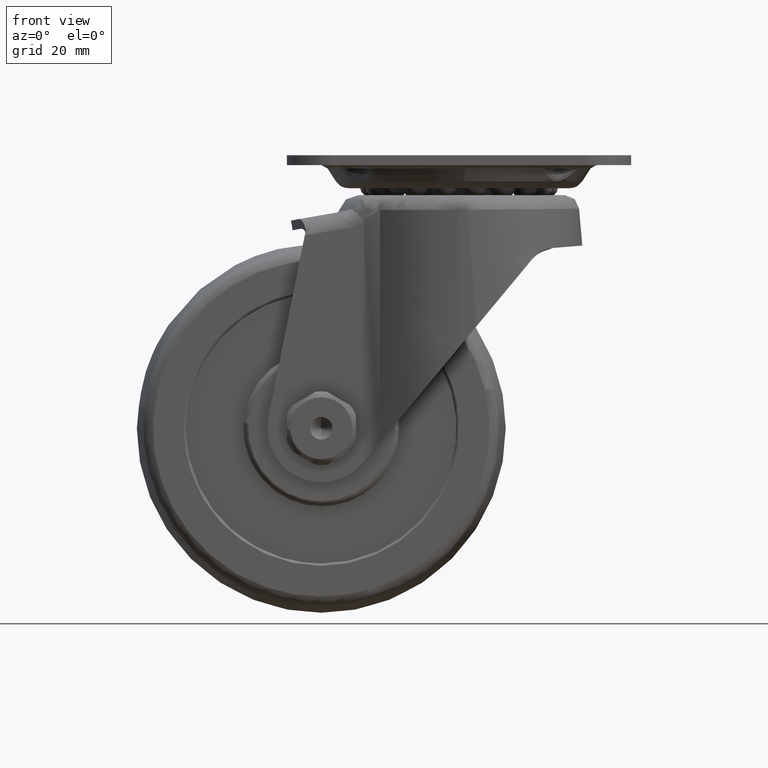
[diagram: clean part render]
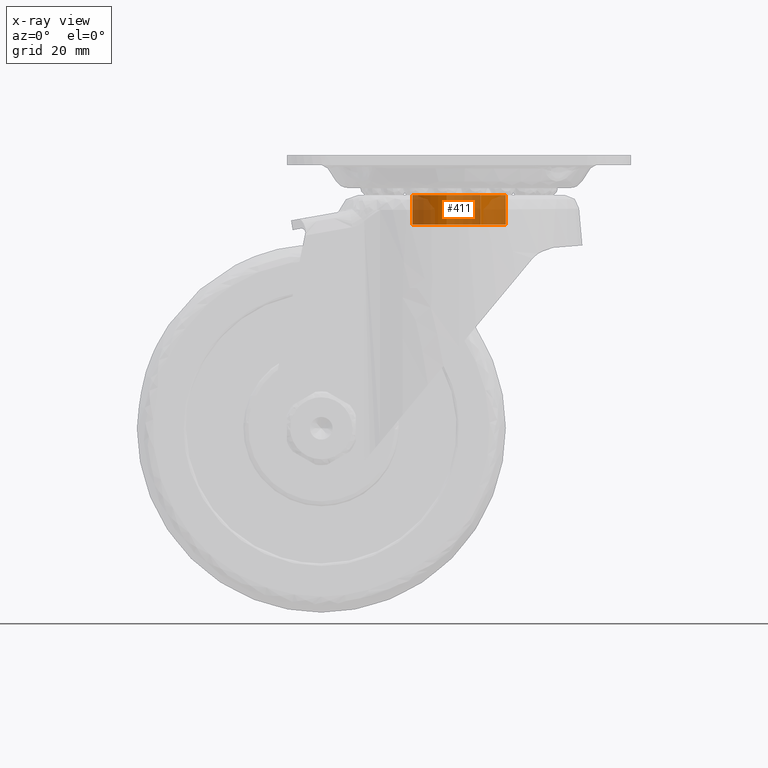
[diagram: x-ray — body ghosted, one internal face saturated and labeled with its STEP entity id]
A machine part, front view, then the same camera in x-ray: the body is ghosted and one INTERNAL B-rep face — a face not visible from any outside direction — is saturated and labeled: STEP entity #411.
In plain terms, the highlighted face is a freeform B-spline surface patch.
Its self-contained STEP definition (entity closure, byte-faithful):
#245=CARTESIAN_POINT('',(4.401541348275800,-8.418814272771337,-14.255999462499902));
#246=CARTESIAN_POINT('',(8.053277435599968,-6.509606294002475,-14.255999462499901));
#247=CARTESIAN_POINT('',(9.154489305481915,-2.538764572743439,-14.255999462499901));
#248=CARTESIAN_POINT('',(11.693253878225356,6.615724732738475,-14.255999462499892));
#249=CARTESIAN_POINT('',(2.538764572743439,9.154489305481915,-14.255999462499901));
#250=CARTESIAN_POINT('',(-6.615724732738475,11.693253878225356,-14.255999462499892));
#251=CARTESIAN_POINT('',(-9.154489305481915,2.538764572743439,-14.255999462499901));
#252=CARTESIAN_POINT('',(-11.693253878225356,-6.615724732738475,-14.255999462499892));
#253=CARTESIAN_POINT('',(-2.538764572743439,-9.154489305481915,-14.255999462499901));
#254=CARTESIAN_POINT('',(4.401541348275800,-8.418814272771337,-7.952251038437503));
#255=CARTESIAN_POINT('',(8.053277435599968,-6.509606294002475,-7.952251038437503));
#256=CARTESIAN_POINT('',(9.154489305481915,-2.538764572743439,-7.952251038437502));
#257=CARTESIAN_POINT('',(11.693253878225356,6.615724732738475,-7.952251038437502));
#258=CARTESIAN_POINT('',(2.538764572743439,9.154489305481915,-7.952251038437502));
#259=CARTESIAN_POINT('',(-6.615724732738475,11.693253878225356,-7.952251038437502));
#260=CARTESIAN_POINT('',(-9.154489305481915,2.538764572743439,-7.952251038437502));
#261=CARTESIAN_POINT('',(-11.693253878225356,-6.615724732738475,-7.952251038437502));
#262=CARTESIAN_POINT('',(-2.538764572743439,-9.154489305481915,-7.952251038437502));
#270=(BOUNDED_SURFACE()B_SPLINE_SURFACE(2,1,((#245,#254),(#246,#255),(#247,#256),(#248,#257),(#249,#258),(#250,#259),(#251,#260),(#252,#261),(#253,#262)),.UNSPECIFIED.,.F.,.F.,.U.)B_SPLINE_SURFACE_WITH_KNOTS((3,2,2,2,3),(2,2),(0.0,8.184859992492354,23.924975362669961,39.665090732847560,55.405206103025172),(0.0,6.303748424062396),.UNSPECIFIED.)GEOMETRIC_REPRESENTATION_ITEM()RATIONAL_B_SPLINE_SURFACE(((0.853787705168325,0.853787705168325),(0.847695526217005,0.847695526217005),(1.0,1.0),(0.707106781186548,0.707106781186548),(1.0,1.0),(0.707106781186548,0.707106781186548),(1.0,1.0),(0.707106781186548,0.707106781186548),(1.0,1.0)))REPRESENTATION_ITEM('')SURFACE());
#271=CARTESIAN_POINT('',(7.227046226927605,-6.166020015699724,-14.105993081923121));
#272=VERTEX_POINT('',#271);
#273=CARTESIAN_POINT('',(4.401541348281134,-8.418814272772451,-14.105993755843780));
#274=VERTEX_POINT('',#273);
#275=CARTESIAN_POINT('',(7.227046226927605,-6.166020015699724,-14.105993081923128));
#276=CARTESIAN_POINT('',(6.032509539601383,-7.566108214746069,-14.105993311091737));
#277=CARTESIAN_POINT('',(4.401541348281134,-8.418814272772451,-14.105993755843777));
#285=(BOUNDED_CURVE()B_SPLINE_CURVE(2,(#275,#276,#277),.UNSPECIFIED.,.F.,.U.)B_SPLINE_CURVE_WITH_KNOTS((3,3),(0.613065012345051,0.671174122833267),.UNSPECIFIED.)CURVE()GEOMETRIC_REPRESENTATION_ITEM()RATIONAL_B_SPLINE_CURVE((0.854888458153369,0.848388276452165,0.873536202615750))REPRESENTATION_ITEM(''));
#286=EDGE_CURVE('',#272,#274,#285,.T.);
#287=ORIENTED_EDGE('',*,*,#286,.T.);
#288=CARTESIAN_POINT('',(4.401539928863537,-8.418815014870997,-8.106000999999999));
#289=VERTEX_POINT('',#288);
#290=CARTESIAN_POINT('',(4.401541348281134,-8.418814272772451,-14.105993755843780));
#291=CARTESIAN_POINT('',(4.401539928863537,-8.418815014870997,-8.106000999999999));
#292=QUASI_UNIFORM_CURVE('',1,(#290,#291),.UNSPECIFIED.,.F.,.U.);
#293=EDGE_CURVE('',#274,#289,#292,.T.);
#294=ORIENTED_EDGE('',*,*,#293,.T.);
#295=CARTESIAN_POINT('',(9.500000000000000,0.0,-8.106000999999999));
#296=VERTEX_POINT('',#295);
#297=CARTESIAN_POINT('',(9.500000000000000,0.0,-8.106000999999999));
#298=CARTESIAN_POINT('',(9.500000000000000,-5.753228998408784,-8.106000999999999));
#299=CARTESIAN_POINT('',(4.401539928863537,-8.418815014870997,-8.106000999999999));
#307=(BOUNDED_CURVE()B_SPLINE_CURVE(2,(#297,#298,#299),.UNSPECIFIED.,.F.,.U.)B_SPLINE_CURVE_WITH_KNOTS((3,3),(0.0,0.171174148868714),.UNSPECIFIED.)CURVE()GEOMETRIC_REPRESENTATION_ITEM()RATIONAL_B_SPLINE_CURVE((1.0,0.799457010240758,0.873536225150519))REPRESENTATION_ITEM(''));
#308=EDGE_CURVE('',#296,#289,#307,.T.);
#309=ORIENTED_EDGE('',*,*,#308,.F.);
#310=CARTESIAN_POINT('',(-9.500000000000000,0.0,-8.106000999999999));
#311=VERTEX_POINT('',#310);
#312=CARTESIAN_POINT('',(-9.500000000000000,0.0,-8.106000999999999));
#313=CARTESIAN_POINT('',(-9.500000000000000,9.500000000000000,-8.106000999999999));
#314=CARTESIAN_POINT('',(0.0,9.500000000000000,-8.106000999999999));
#315=CARTESIAN_POINT('',(9.500000000000000,9.500000000000000,-8.106000999999999));
#316=CARTESIAN_POINT('',(9.500000000000000,0.0,-8.106000999999999));
#324=(BOUNDED_CURVE()B_SPLINE_CURVE(2,(#312,#313,#314,#315,#316),.UNSPECIFIED.,.F.,.U.)B_SPLINE_CURVE_WITH_KNOTS((3,2,3),(0.500000000000000,0.750000000000000,1.0),.UNSPECIFIED.)CURVE()GEOMETRIC_REPRESENTATION_ITEM()RATIONAL_B_SPLINE_CURVE((1.0,0.707106781186548,1.0,0.707106781186548,1.0))REPRESENTATION_ITEM(''));
#325=EDGE_CURVE('',#311,#296,#324,.T.);
#326=ORIENTED_EDGE('',*,*,#325,.F.);
#327=CARTESIAN_POINT('',(-2.538759619908632,-9.154490679021684,-8.106000999999999));
#328=VERTEX_POINT('',#327);
#329=CARTESIAN_POINT('',(-2.538759619908632,-9.154490679021684,-8.106000999999999));
#330=CARTESIAN_POINT('',(-9.500000000000000,-7.223971920404214,-8.106000999999999));
#331=CARTESIAN_POINT('',(-9.500000000000000,0.0,-8.106000999999999));
#339=(BOUNDED_CURVE()B_SPLINE_CURVE(2,(#329,#330,#331),.UNSPECIFIED.,.F.,.U.)B_SPLINE_CURVE_WITH_KNOTS((3,3),(0.295548739340634,0.500000000000000),.UNSPECIFIED.)CURVE()GEOMETRIC_REPRESENTATION_ITEM()RATIONAL_B_SPLINE_CURVE((0.912717847227673,0.760470448700041,1.0))REPRESENTATION_ITEM(''));
#340=EDGE_CURVE('',#328,#311,#339,.T.);
#341=ORIENTED_EDGE('',*,*,#340,.F.);
#342=CARTESIAN_POINT('',(-2.538764572804722,-9.154489305465912,-14.105996008628310));
#343=VERTEX_POINT('',#342);
#344=CARTESIAN_POINT('',(-2.538764572804722,-9.154489305465912,-14.105996008628310));
#345=CARTESIAN_POINT('',(-2.538759619908632,-9.154490679021684,-8.106000999999999));
#346=QUASI_UNIFORM_CURVE('',1,(#344,#345),.UNSPECIFIED.,.F.,.U.);
#347=EDGE_CURVE('',#343,#328,#346,.T.);
#348=ORIENTED_EDGE('',*,*,#347,.F.);
#349=CARTESIAN_POINT('',(-9.500000000000000,0.0,-14.105999499999900));
#350=VERTEX_POINT('',#349);
#351=CARTESIAN_POINT('',(-2.538764572804723,-9.154489305465912,-14.105996008628310));
#352=CARTESIAN_POINT('',(-9.499999999999112,-7.223967864422365,-14.105998600475839));
#353=CARTESIAN_POINT('',(-9.500000000000000,0.0,-14.105999499999900));
#361=(BOUNDED_CURVE()B_SPLINE_CURVE(2,(#351,#352,#353),.UNSPECIFIED.,.F.,.U.)B_SPLINE_CURVE_WITH_KNOTS((3,3),(0.795548826636209,1.0),.UNSPECIFIED.)CURVE()GEOMETRIC_REPRESENTATION_ITEM()RATIONAL_B_SPLINE_CURVE((0.912717717216082,0.760470550973168,1.0))REPRESENTATION_ITEM(''));
#362=EDGE_CURVE('',#343,#350,#361,.T.);
#363=ORIENTED_EDGE('',*,*,#362,.T.);
#364=CARTESIAN_POINT('',(5.290315068270839,7.890663247063014,-14.105993899331990));
#365=VERTEX_POINT('',#364);
#366=CARTESIAN_POINT('',(-9.500000000000000,0.0,-14.105999499999900));
#367=CARTESIAN_POINT('',(-9.499999999999027,9.500000000001451,-14.105998006016025));
#368=CARTESIAN_POINT('',(2.799639E-012,9.500000000004173,-14.105995205682071));
#369=CARTESIAN_POINT('',(2.889941138794697,9.500000000005002,-14.105994353808358));
#370=CARTESIAN_POINT('',(5.290315068270839,7.890663247063014,-14.105993899331990));
#378=(BOUNDED_CURVE()B_SPLINE_CURVE(2,(#366,#367,#368,#369,#370),.UNSPECIFIED.,.F.,.U.)B_SPLINE_CURVE_WITH_KNOTS((3,2,3),(0.0,0.250000000000000,0.345516821874840),.UNSPECIFIED.)CURVE()GEOMETRIC_REPRESENTATION_ITEM()RATIONAL_B_SPLINE_CURVE((1.0,0.707106781186548,1.0,0.888095082360988,0.861700581402329))REPRESENTATION_ITEM(''));
#379=EDGE_CURVE('',#350,#365,#378,.T.);
#380=ORIENTED_EDGE('',*,*,#379,.T.);
#381=CARTESIAN_POINT('',(9.500000000000000,0.0,-14.105999499999900));
#382=VERTEX_POINT('',#381);
#383=CARTESIAN_POINT('',(5.290315068270839,7.890663247063014,-14.105993899331990));
#384=CARTESIAN_POINT('',(9.500000000001826,5.068269370942449,-14.105996699665951));
#385=CARTESIAN_POINT('',(9.500000000000000,0.0,-14.105999499999900));
#393=(BOUNDED_CURVE()B_SPLINE_CURVE(2,(#383,#384,#385),.UNSPECIFIED.,.F.,.U.)B_SPLINE_CURVE_WITH_KNOTS((3,3),(0.345516821874840,0.500000000000000),.UNSPECIFIED.)CURVE()GEOMETRIC_REPRESENTATION_ITEM()RATIONAL_B_SPLINE_CURVE((0.861700581402329,0.819011698825560,1.0))REPRESENTATION_ITEM(''));
#394=EDGE_CURVE('',#365,#382,#393,.T.);
#395=ORIENTED_EDGE('',*,*,#394,.T.);
#396=CARTESIAN_POINT('',(9.500000000000000,0.0,-14.105999499999900));
#397=CARTESIAN_POINT('',(9.500000000003167,-3.501944656245669,-14.105996290961508));
#398=CARTESIAN_POINT('',(7.227046226927605,-6.166020015699724,-14.105993081923128));
#406=(BOUNDED_CURVE()B_SPLINE_CURVE(2,(#396,#397,#398),.UNSPECIFIED.,.F.,.U.)B_SPLINE_CURVE_WITH_KNOTS((3,3),(0.500000000000000,0.613065012345051),.UNSPECIFIED.)CURVE()GEOMETRIC_REPRESENTATION_ITEM()RATIONAL_B_SPLINE_CURVE((1.0,0.867536098396301,0.854888458153369))REPRESENTATION_ITEM(''));
#407=EDGE_CURVE('',#382,#272,#406,.T.);
#408=ORIENTED_EDGE('',*,*,#407,.T.);
#409=EDGE_LOOP('',(#287,#294,#309,#326,#341,#348,#363,#380,#395,#408));
#410=FACE_OUTER_BOUND('',#409,.T.);
#411=ADVANCED_FACE('',(#410),#270,.F.);